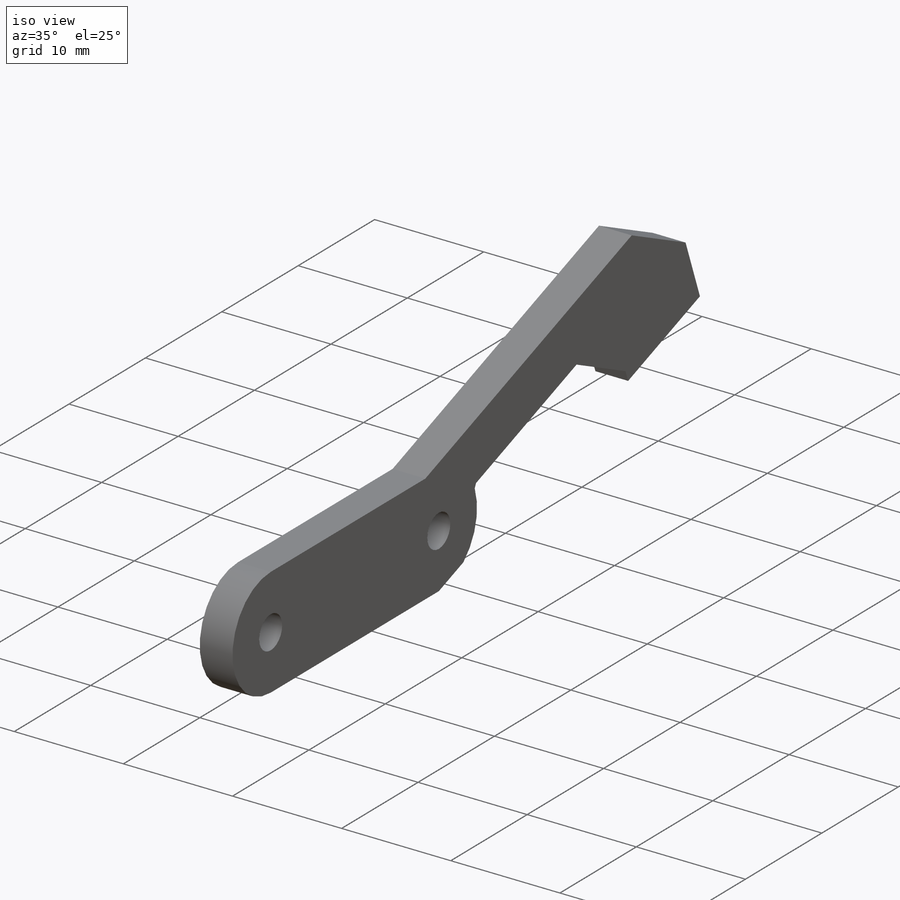
[diagram: iso view]
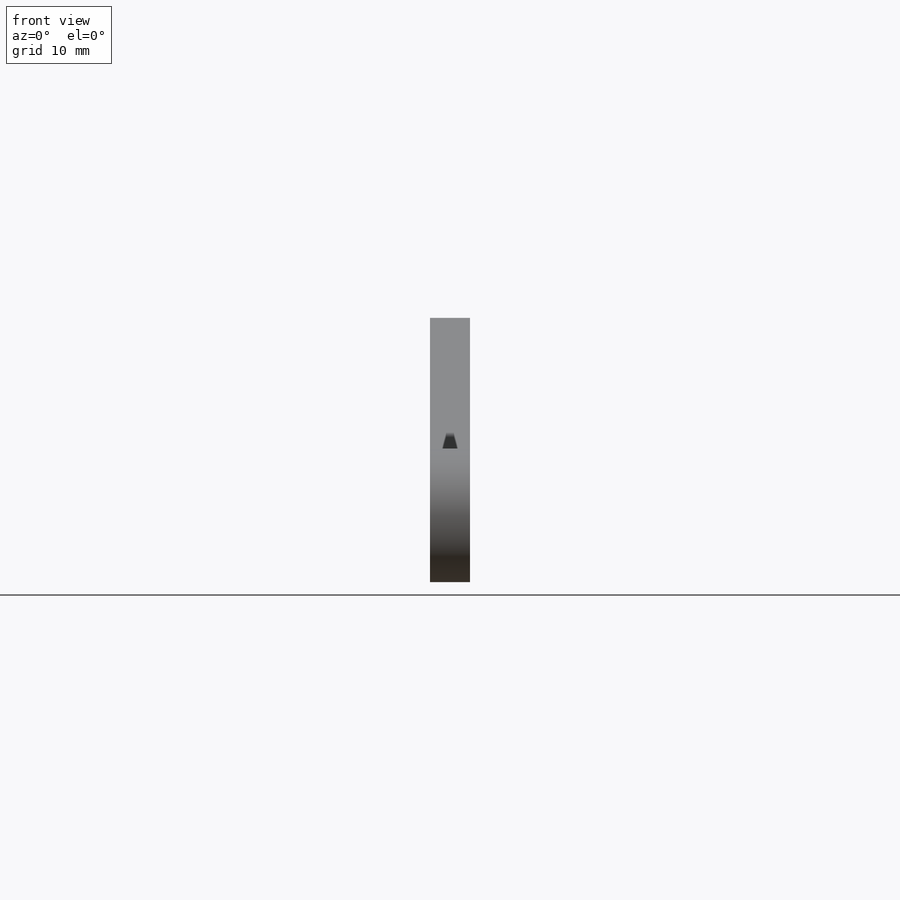
[diagram: front view]
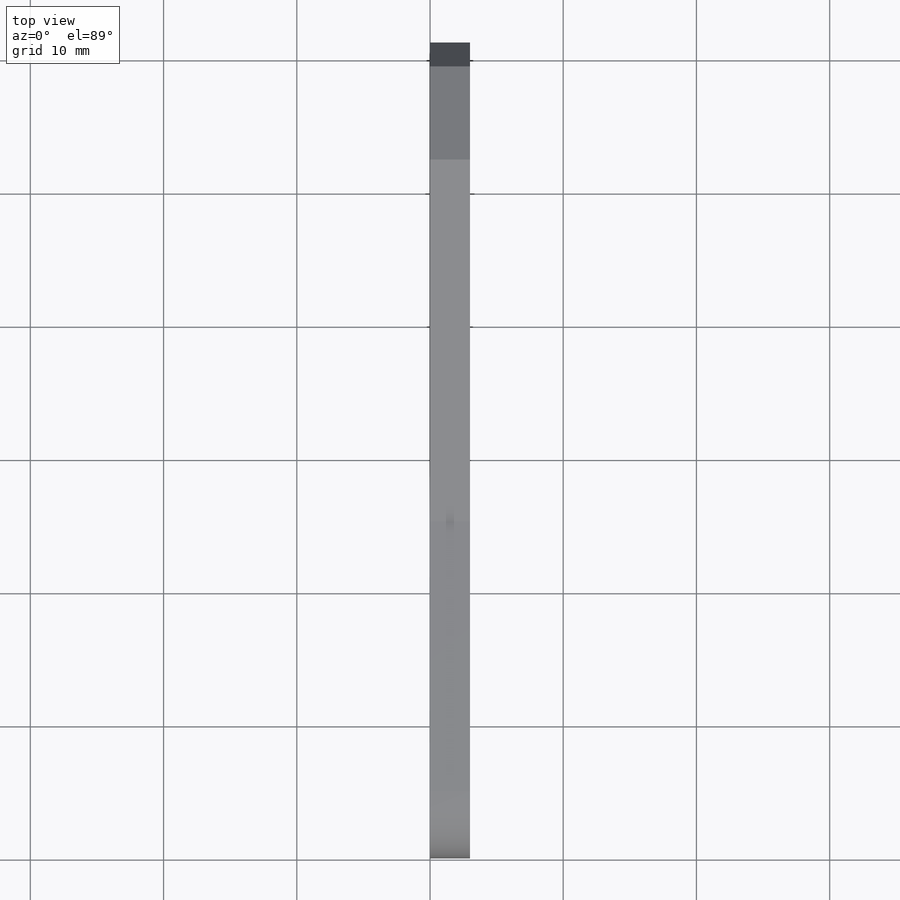
[diagram: top view]
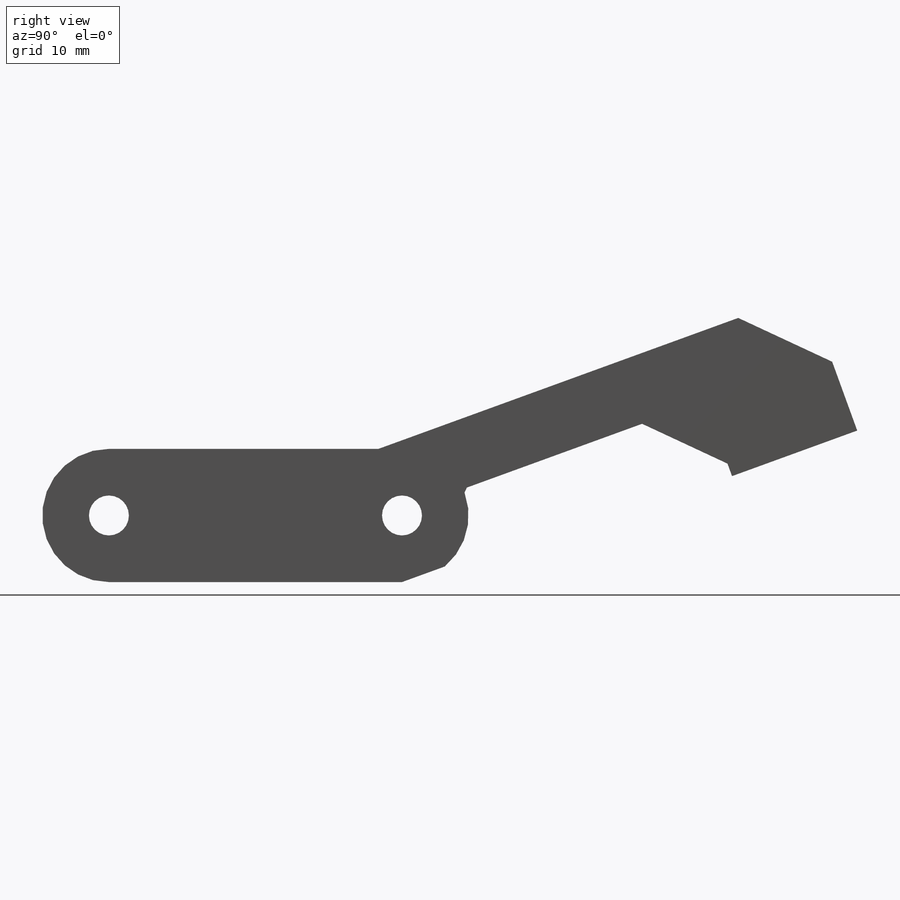
[diagram: right view]
SOLIDWORKS PART (.sldprt)
format: sldprt  version: not decoded by parser v0  size: 208,896 bytes
history: native  units: mm
features: sketch x4, extrude x2, cut_extrude x2, material x1 (+11 scaffold rows collapsed)
feature tree (20):
  scaffold x11  (default folders/planes/origin — collapsed)
  material  "Material <not specified>"
  sketch  "Sketch1"  dims[c1.D7=3.0mm c1.D11=10.0mm c1.D2=3.0mm c1.D1=10.0mm c2.D2=33.0mm c2.D3=33.0mm c3.D3=~159.496953deg c4.D3=33.0mm c5.D3=160.0deg c5.D4=~60.692231mm c6.D3=~18.652612mm c7.D3=160.0deg c7.D4=29.0mm c7.D5=30.0mm c7.D6=10.0mm c7.D8=5.0mm c7.D9=5.0mm c7.D10=22.0mm]
  extrude  "Boss-Extrude1"  Depth=3mm
  sketch  "Sketch2"  dims[c1.D1=~5.204705mm c2.D1=160.0deg c2.D2=25.0mm c2.D3=27.5mm c3.D1=28.0mm c3.D2=~5.445542mm c4.D2=160.0deg c4.D3=25.0mm c4.D4=~11.337532mm c5.D4=160.0deg c5.D5=27.0mm c5.D6=36.5mm c5.D7=~8.104468mm c6.D7=45.0deg c6.D8=~7.695804mm c7.D8=135.0deg c7.D9=~8.387844mm c8.D9=135.0deg c8.D10=9.0mm c8.D11=14.0mm c8.D1=~28.291531mm c9.D1=160.0deg c9.D2=36.0mm c9.D3=~3.661361mm c10.D3=90.0deg c10.D4=10.0mm c10.D5=10.0mm c10.D6=~3.928892mm c11.D6=45.0deg c11.D7=36.0mm c12.D7=45.0deg c12.D8=5.0mm c12.D9=5.0mm c12.D10=14.0mm c12.D11=1.0mm]
  extrude  "Boss-Extrude2"  Depth=3mm
  sketch  "Sketch3"  dims[c1.D1=~8.892524mm c2.D1=160.0deg]
  cut_extrude  "Cut-Extrude1"  Depth=3mm
  sketch  "Sketch4"  dims[D1=~7.778175mm]
  cut_extrude  "Cut-Extrude2"  [1 undecoded]
decode coverage: 7 of 8 modeling features carry decoded parameters
note: ~ marks probable driven/reference dimensions
note: 1 parameter value undecoded
note: suppression state not decoded; provenance and decode notes live in map.json
